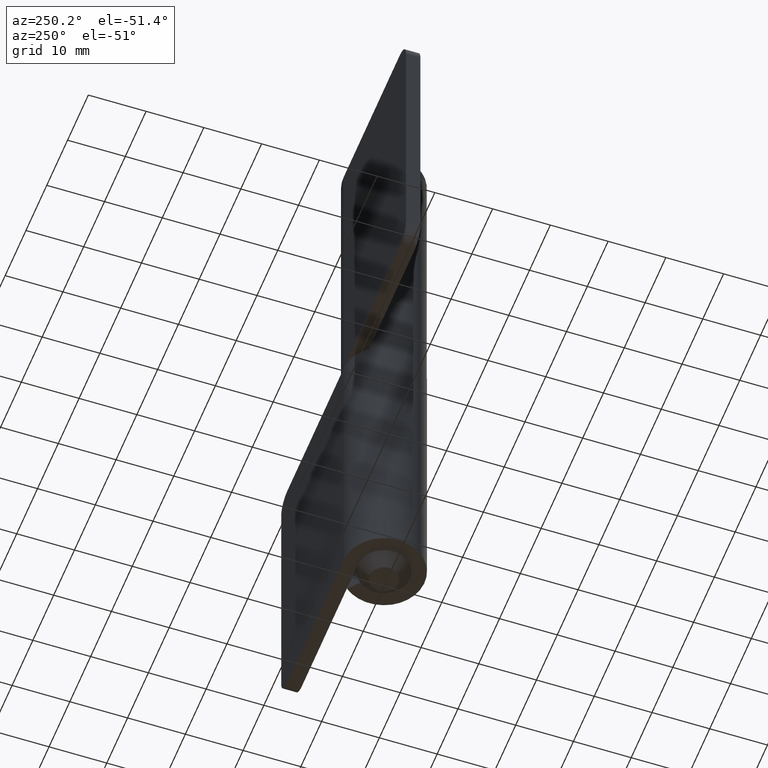
[diagram: clean part render]
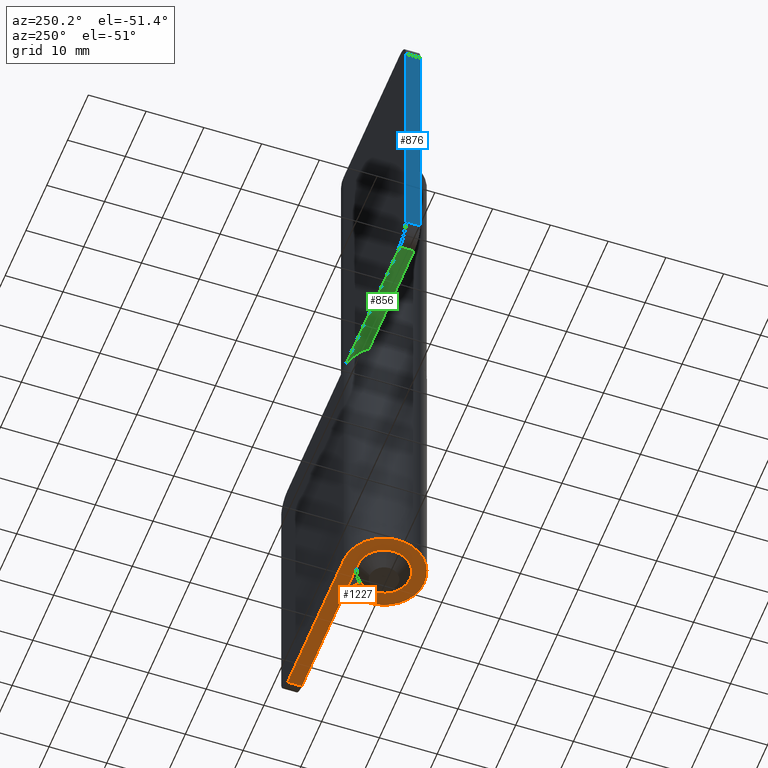
[diagram: same view with three faces highlighted in distinct colors, each labeled with its STEP entity id]
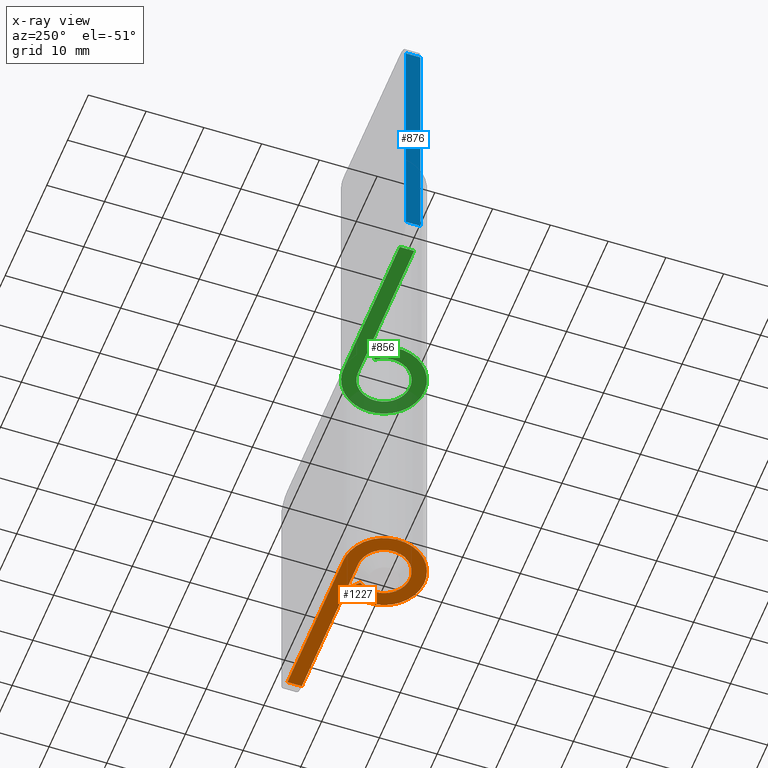
[diagram: x-ray of the same camera — body ghosted, the three highlighted faces saturated]
A machine part, auxiliary view with three faces highlighted in distinct colors.
The next image is the same camera in x-ray (body ghosted, the three faces saturated) — at least one of them is partly hidden behind the body in this view.
Their STEP definitions:

[orange] entity #1227 — the highlighted face is a freeform B-spline surface patch.
#1113=CARTESIAN_POINT('',(27.0,7.0,0.0));
#1114=VERTEX_POINT('',#1113);
#1135=CARTESIAN_POINT('',(27.0,4.500000000000000,0.0));
#1136=VERTEX_POINT('',#1135);
#1150=CARTESIAN_POINT('',(27.0,7.0,0.0));
#1151=CARTESIAN_POINT('',(27.0,4.500000000000000,0.0));
#1152=QUASI_UNIFORM_CURVE('',1,(#1150,#1151),.UNSPECIFIED.,.F.,.U.);
#1153=EDGE_CURVE('',#1114,#1136,#1152,.T.);
#1158=CARTESIAN_POINT('',(-8.689261789277776,-7.675295667592425,0.0));
#1159=CARTESIAN_POINT('',(28.697870867901461,-7.675295667592425,0.0));
#1160=CARTESIAN_POINT('',(-8.689261789277776,7.698158374041653,0.0));
#1161=CARTESIAN_POINT('',(28.697870867901461,7.698158374041653,0.0));
#1162=B_SPLINE_SURFACE_WITH_KNOTS('',1,1,((#1158,#1160),(#1159,#1161)),.UNSPECIFIED.,.F.,.F.,.U.,(2,2),(2,2),(0.0,37.387132657179237),(0.0,15.373454041634080),.UNSPECIFIED.);
#1163=CARTESIAN_POINT('',(0.0,7.0,0.0));
#1164=VERTEX_POINT('',#1163);
#1165=CARTESIAN_POINT('',(0.0,7.0,0.0));
#1166=CARTESIAN_POINT('',(27.0,7.0,0.0));
#1167=QUASI_UNIFORM_CURVE('',1,(#1165,#1166),.UNSPECIFIED.,.F.,.U.);
#1168=EDGE_CURVE('',#1164,#1114,#1167,.T.);
#1169=ORIENTED_EDGE('',*,*,#1168,.T.);
#1170=ORIENTED_EDGE('',*,*,#1153,.T.);
#1171=CARTESIAN_POINT('',(0.0,4.500000000000000,0.0));
#1172=VERTEX_POINT('',#1171);
#1173=CARTESIAN_POINT('',(27.0,4.500000000000000,0.0));
#1174=CARTESIAN_POINT('',(0.0,4.500000000000000,0.0));
#1175=QUASI_UNIFORM_CURVE('',1,(#1173,#1174),.UNSPECIFIED.,.F.,.U.);
#1176=EDGE_CURVE('',#1136,#1172,#1175,.T.);
#1177=ORIENTED_EDGE('',*,*,#1176,.T.);
#1178=CARTESIAN_POINT('',(3.473659997108265,2.860714285714285,0.0));
#1179=VERTEX_POINT('',#1178);
#1180=CARTESIAN_POINT('',(3.473659997108265,2.860714285714288,0.0));
#1181=CARTESIAN_POINT('',(5.764223053311221,0.079367927946310,0.0));
#1182=CARTESIAN_POINT('',(3.551106880904621,-2.763989855334468,0.0));
#1183=CARTESIAN_POINT('',(1.337990708498023,-5.607347638615245,0.0));
#1184=CARTESIAN_POINT('',(-1.920518903094382,-4.069595451989933,0.0));
#1185=CARTESIAN_POINT('',(-5.179028514686786,-2.531843265364620,0.0));
#1186=CARTESIAN_POINT('',(-4.391080706042346,0.984078367317689,0.0));
#1187=CARTESIAN_POINT('',(-3.603132897397907,4.500000000000000,0.0));
#1188=CARTESIAN_POINT('',(0.0,4.500000000000000,0.0));
#1196=(BOUNDED_CURVE()B_SPLINE_CURVE(2,(#1180,#1181,#1182,#1183,#1184,#1185,#1186,#1187,#1188),.UNSPECIFIED.,.F.,.U.)B_SPLINE_CURVE_WITH_KNOTS((3,2,2,2,3),(0.0,0.250000000000000,0.500000000000000,0.750000000000000,1.0),.UNSPECIFIED.)CURVE()GEOMETRIC_REPRESENTATION_ITEM()RATIONAL_B_SPLINE_CURVE((1.0,0.780603638739326,1.0,0.780603638739326,1.0,0.780603638739326,1.0,0.780603638739326,1.0))REPRESENTATION_ITEM(''));
#1197=EDGE_CURVE('',#1179,#1172,#1196,.T.);
#1198=ORIENTED_EDGE('',*,*,#1197,.F.);
#1199=CARTESIAN_POINT('',(5.403471106612860,4.450000000000000,0.0));
#1200=VERTEX_POINT('',#1199);
#1201=CARTESIAN_POINT('',(3.473659997108265,2.860714285714285,0.0));
#1202=CARTESIAN_POINT('',(5.403471106612860,4.450000000000000,0.0));
#1203=QUASI_UNIFORM_CURVE('',1,(#1201,#1202),.UNSPECIFIED.,.F.,.U.);
#1204=EDGE_CURVE('',#1179,#1200,#1203,.T.);
#1205=ORIENTED_EDGE('',*,*,#1204,.T.);
#1206=CARTESIAN_POINT('',(5.403471106612857,4.450000000000004,0.0));
#1207=CARTESIAN_POINT('',(8.966569194039675,0.123461221249817,0.0));
#1208=CARTESIAN_POINT('',(5.523944036962744,-4.299539774964727,0.0));
#1209=CARTESIAN_POINT('',(2.081318879885813,-8.722540771179270,0.0));
#1210=CARTESIAN_POINT('',(-2.987473849257928,-6.330481814206563,0.0));
#1211=CARTESIAN_POINT('',(-8.056266578401672,-3.938422857233855,0.0));
#1212=CARTESIAN_POINT('',(-6.830569987176983,1.530788571383071,0.0));
#1213=CARTESIAN_POINT('',(-5.604873395952298,7.0,0.0));
#1214=CARTESIAN_POINT('',(0.0,7.0,0.0));
#1222=(BOUNDED_CURVE()B_SPLINE_CURVE(2,(#1206,#1207,#1208,#1209,#1210,#1211,#1212,#1213,#1214),.UNSPECIFIED.,.F.,.U.)B_SPLINE_CURVE_WITH_KNOTS((3,2,2,2,3),(0.0,0.250000000000000,0.500000000000000,0.750000000000000,1.0),.UNSPECIFIED.)CURVE()GEOMETRIC_REPRESENTATION_ITEM()RATIONAL_B_SPLINE_CURVE((1.0,0.780603638739326,1.0,0.780603638739326,1.0,0.780603638739326,1.0,0.780603638739326,1.0))REPRESENTATION_ITEM(''));
#1223=EDGE_CURVE('',#1200,#1164,#1222,.T.);
#1224=ORIENTED_EDGE('',*,*,#1223,.T.);
#1225=EDGE_LOOP('',(#1169,#1170,#1177,#1198,#1205,#1224));
#1226=FACE_OUTER_BOUND('',#1225,.T.);
#1227=ADVANCED_FACE('',(#1226),#1162,.F.);

[blue] entity #876 — the highlighted face is a freeform B-spline surface patch.
#609=CARTESIAN_POINT('',(-30.0,7.000000000000110,97.0));
#610=VERTEX_POINT('',#609);
#626=CARTESIAN_POINT('',(-30.0,4.500000000000110,97.0));
#627=VERTEX_POINT('',#626);
#628=CARTESIAN_POINT('',(-30.0,4.500000000000110,97.0));
#629=CARTESIAN_POINT('',(-30.0,7.000000000000110,97.0));
#630=QUASI_UNIFORM_CURVE('',1,(#628,#629),.UNSPECIFIED.,.F.,.U.);
#631=EDGE_CURVE('',#627,#610,#630,.T.);
#672=CARTESIAN_POINT('',(-30.0,7.000000000000110,53.0));
#673=VERTEX_POINT('',#672);
#694=CARTESIAN_POINT('',(-30.0,4.500000000000110,53.0));
#695=VERTEX_POINT('',#694);
#709=CARTESIAN_POINT('',(-30.0,7.000000000000110,53.0));
#710=CARTESIAN_POINT('',(-30.0,4.500000000000110,53.0));
#711=QUASI_UNIFORM_CURVE('',1,(#709,#710),.UNSPECIFIED.,.F.,.U.);
#712=EDGE_CURVE('',#673,#695,#711,.T.);
#857=CARTESIAN_POINT('',(-30.0,4.375125004845596,50.802200085280532));
#858=CARTESIAN_POINT('',(-30.0,4.375125004845596,99.197801094891446));
#859=CARTESIAN_POINT('',(-30.0,7.124875062209851,50.802200085280532));
#860=CARTESIAN_POINT('',(-30.0,7.124875062209851,99.197801094891446));
#861=B_SPLINE_SURFACE_WITH_KNOTS('',1,1,((#857,#859),(#858,#860)),.UNSPECIFIED.,.F.,.F.,.U.,(2,2),(2,2),(0.0,48.395601009610907),(0.0,2.749750057364255),.UNSPECIFIED.);
#862=CARTESIAN_POINT('',(-30.0,7.000000000000110,53.0));
#863=CARTESIAN_POINT('',(-30.0,7.000000000000110,97.0));
#864=QUASI_UNIFORM_CURVE('',1,(#862,#863),.UNSPECIFIED.,.F.,.U.);
#865=EDGE_CURVE('',#673,#610,#864,.T.);
#866=ORIENTED_EDGE('',*,*,#865,.F.);
#867=ORIENTED_EDGE('',*,*,#712,.T.);
#868=CARTESIAN_POINT('',(-30.0,4.500000000000110,53.0));
#869=CARTESIAN_POINT('',(-30.0,4.500000000000110,97.0));
#870=QUASI_UNIFORM_CURVE('',1,(#868,#869),.UNSPECIFIED.,.F.,.U.);
#871=EDGE_CURVE('',#695,#627,#870,.T.);
#872=ORIENTED_EDGE('',*,*,#871,.T.);
#873=ORIENTED_EDGE('',*,*,#631,.T.);
#874=EDGE_LOOP('',(#866,#867,#872,#873));
#875=FACE_OUTER_BOUND('',#874,.T.);
#876=ADVANCED_FACE('',(#875),#861,.T.);

[green] entity #856 — the highlighted face is a freeform B-spline surface patch.
#670=CARTESIAN_POINT('',(-27.0,7.000000000000110,50.0));
#671=VERTEX_POINT('',#670);
#687=CARTESIAN_POINT('',(-27.0,4.500000000000110,50.0));
#688=VERTEX_POINT('',#687);
#689=CARTESIAN_POINT('',(-27.0,4.500000000000110,50.0));
#690=CARTESIAN_POINT('',(-27.0,7.000000000000110,50.0));
#691=QUASI_UNIFORM_CURVE('',1,(#689,#690),.UNSPECIFIED.,.F.,.U.);
#692=EDGE_CURVE('',#688,#671,#691,.T.);
#787=CARTESIAN_POINT('',(-28.697869880280550,7.698157968271238,50.0));
#788=CARTESIAN_POINT('',(8.689261105563602,7.698157968271238,50.0));
#789=CARTESIAN_POINT('',(-28.697869880280550,-7.675295386683966,50.0));
#790=CARTESIAN_POINT('',(8.689261105563602,-7.675295386683966,50.0));
#791=B_SPLINE_SURFACE_WITH_KNOTS('',1,1,((#787,#789),(#788,#790)),.UNSPECIFIED.,.F.,.F.,.U.,(2,2),(2,2),(0.0,37.387130985844152),(0.0,15.373453354955201),.UNSPECIFIED.);
#792=CARTESIAN_POINT('',(2.755364E-016,4.500000000000000,50.0));
#793=VERTEX_POINT('',#792);
#794=CARTESIAN_POINT('',(-27.0,4.500000000000110,50.0));
#795=CARTESIAN_POINT('',(2.755364E-016,4.500000000000000,50.0));
#796=QUASI_UNIFORM_CURVE('',1,(#794,#795),.UNSPECIFIED.,.F.,.U.);
#797=EDGE_CURVE('',#688,#793,#796,.T.);
#798=ORIENTED_EDGE('',*,*,#797,.F.);
#799=ORIENTED_EDGE('',*,*,#692,.T.);
#800=CARTESIAN_POINT('',(4.286122E-016,7.0,50.0));
#801=VERTEX_POINT('',#800);
#802=CARTESIAN_POINT('',(4.286122E-016,7.0,50.0));
#803=CARTESIAN_POINT('',(-27.0,7.000000000000110,50.0));
#804=QUASI_UNIFORM_CURVE('',1,(#802,#803),.UNSPECIFIED.,.F.,.U.);
#805=EDGE_CURVE('',#801,#671,#804,.T.);
#806=ORIENTED_EDGE('',*,*,#805,.F.);
#807=CARTESIAN_POINT('',(-5.403471106612770,4.450000000000105,50.0));
#808=VERTEX_POINT('',#807);
#809=CARTESIAN_POINT('',(-5.403471106612770,4.450000000000109,50.0));
#810=CARTESIAN_POINT('',(-8.966569194039693,0.123461221249967,49.999999999999993));
#811=CARTESIAN_POINT('',(-5.523944036962805,-4.299539774964649,50.0));
#812=CARTESIAN_POINT('',(-2.081318879885918,-8.722540771179265,49.999999999999993));
#813=CARTESIAN_POINT('',(2.987473849257872,-6.330481814206590,50.0));
#814=CARTESIAN_POINT('',(8.056266578401655,-3.938422857233918,49.999999999999993));
#815=CARTESIAN_POINT('',(6.830569987176992,1.530788571383035,50.0));
#816=CARTESIAN_POINT('',(5.604873395952330,7.0,49.999999999999993));
#817=CARTESIAN_POINT('',(0.0,7.0,50.0));
#825=(BOUNDED_CURVE()B_SPLINE_CURVE(2,(#809,#810,#811,#812,#813,#814,#815,#816,#817),.UNSPECIFIED.,.F.,.U.)B_SPLINE_CURVE_WITH_KNOTS((3,2,2,2,3),(0.0,0.250000000000000,0.500000000000000,0.750000000000000,1.0),.UNSPECIFIED.)CURVE()GEOMETRIC_REPRESENTATION_ITEM()RATIONAL_B_SPLINE_CURVE((1.0,0.780603638739325,1.0,0.780603638739325,1.0,0.780603638739325,1.0,0.780603638739325,1.0))REPRESENTATION_ITEM(''));
#826=EDGE_CURVE('',#808,#801,#825,.T.);
#827=ORIENTED_EDGE('',*,*,#826,.F.);
#828=CARTESIAN_POINT('',(-3.473659997108210,2.860714285714355,50.0));
#829=VERTEX_POINT('',#828);
#830=CARTESIAN_POINT('',(-3.473659997108210,2.860714285714355,50.0));
#831=CARTESIAN_POINT('',(-5.403471106612770,4.450000000000105,50.0));
#832=QUASI_UNIFORM_CURVE('',1,(#830,#831),.UNSPECIFIED.,.F.,.U.);
#833=EDGE_CURVE('',#829,#808,#832,.T.);
#834=ORIENTED_EDGE('',*,*,#833,.F.);
#835=CARTESIAN_POINT('',(-3.473659997108209,2.860714285714355,50.0));
#836=CARTESIAN_POINT('',(-5.764223053311231,0.079367927946408,50.0));
#837=CARTESIAN_POINT('',(-3.551106880904661,-2.763989855334417,50.0));
#838=CARTESIAN_POINT('',(-1.337990708498090,-5.607347638615242,50.0));
#839=CARTESIAN_POINT('',(1.920518903094346,-4.069595451989950,50.0));
#840=CARTESIAN_POINT('',(5.179028514686777,-2.531843265364661,50.0));
#841=CARTESIAN_POINT('',(4.391080706042351,0.984078367317665,50.0));
#842=CARTESIAN_POINT('',(3.603132897397925,4.500000000000001,50.0));
#843=CARTESIAN_POINT('',(0.0,4.500000000000000,50.0));
#851=(BOUNDED_CURVE()B_SPLINE_CURVE(2,(#835,#836,#837,#838,#839,#840,#841,#842,#843),.UNSPECIFIED.,.F.,.U.)B_SPLINE_CURVE_WITH_KNOTS((3,2,2,2,3),(0.0,0.250000000000000,0.500000000000000,0.750000000000000,1.0),.UNSPECIFIED.)CURVE()GEOMETRIC_REPRESENTATION_ITEM()RATIONAL_B_SPLINE_CURVE((1.0,0.780603638739325,1.0,0.780603638739325,1.0,0.780603638739325,1.0,0.780603638739325,1.0))REPRESENTATION_ITEM(''));
#852=EDGE_CURVE('',#829,#793,#851,.T.);
#853=ORIENTED_EDGE('',*,*,#852,.T.);
#854=EDGE_LOOP('',(#798,#799,#806,#827,#834,#853));
#855=FACE_OUTER_BOUND('',#854,.T.);
#856=ADVANCED_FACE('',(#855),#791,.T.);